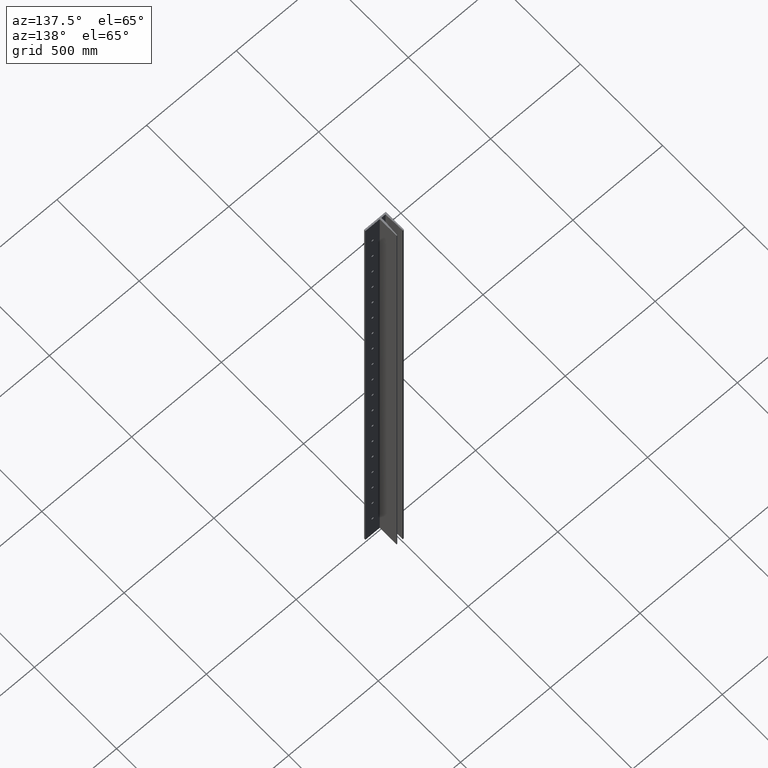
[diagram: clean part render]
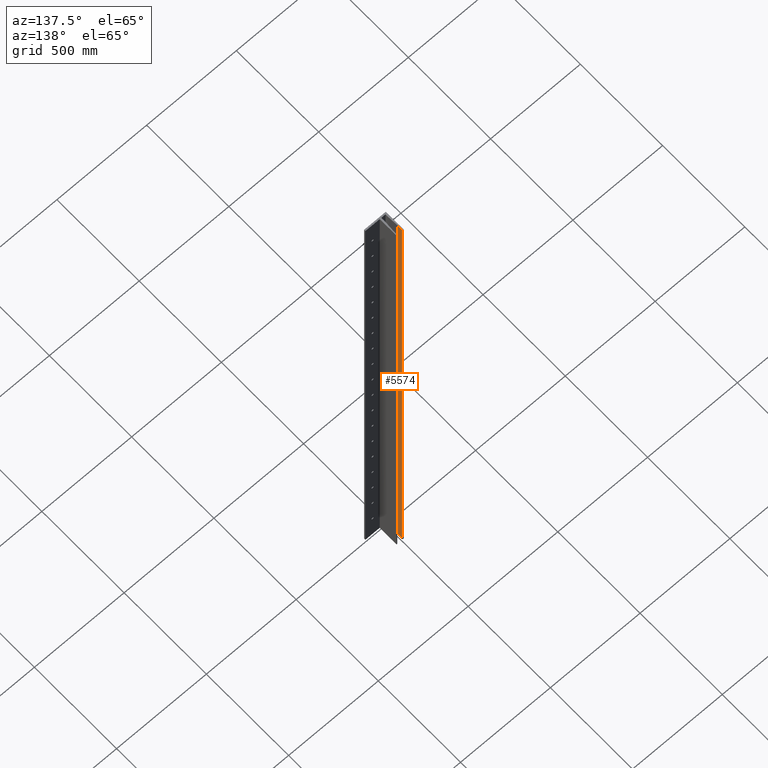
[diagram: same view with one face highlighted and labeled with its STEP entity id]
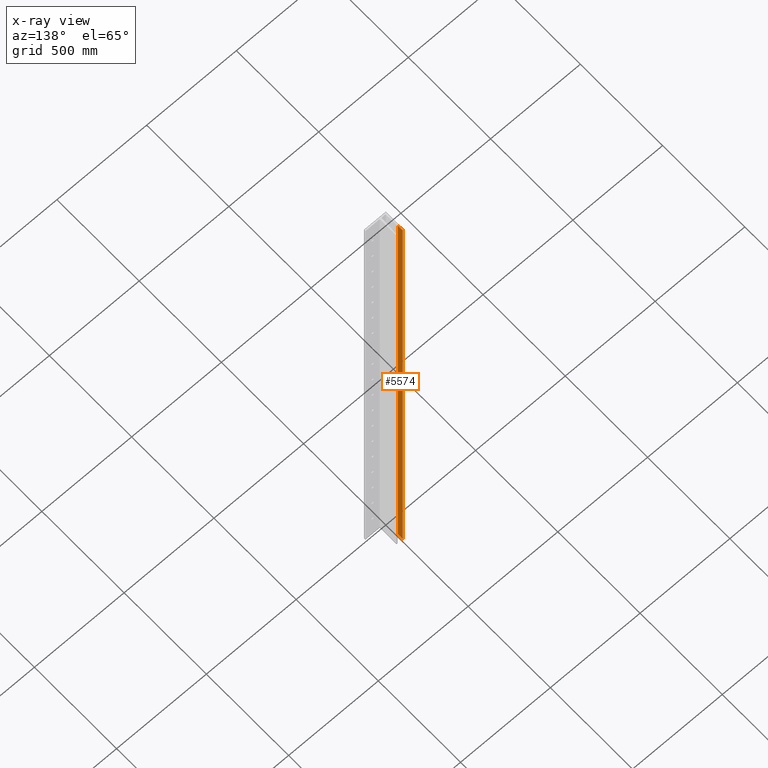
[diagram: x-ray of the same camera — body ghosted, the highlighted face saturated]
A machine part, auxiliary view. The second image highlights one B-rep face of the part: STEP entity #5574.
The next image is the same camera in x-ray: the body ghosted, the highlighted face saturated — about 0% of this face is hidden behind the body in this view.
In plain terms, the highlighted planar face has unit normal (-1, -0, 0).
Its self-contained STEP definition (entity closure, byte-faithful):
#252 = VECTOR ( 'NONE', #1202, 1000.000000000000000 ) ;
#595 = CARTESIAN_POINT ( 'NONE',  ( 6.199999999965304400, 108.8022774425366500, 1500.000000000000000 ) ) ;
#981 = VECTOR ( 'NONE', #4774, 1000.000000000000000 ) ;
#1202 = DIRECTION ( 'NONE',  ( -5.146239971818556900E-016, 1.000000000000000000, 0.0000000000000000000 ) ) ;
#1981 = EDGE_CURVE ( 'NONE', #9761, #5958, #6764, .T. ) ;
#2121 = VERTEX_POINT ( 'NONE', #595 ) ;
#2415 = CARTESIAN_POINT ( 'NONE',  ( 6.199999999965319500, 80.15000000007552200, -1500.000000000000000 ) ) ;
#2517 = VECTOR ( 'NONE', #10091, 1000.000000000000000 ) ;
#2847 = ORIENTED_EDGE ( 'NONE', *, *, #12493, .F. ) ;
#3094 = FACE_OUTER_BOUND ( 'NONE', #16058, .T. ) ;
#3171 = CARTESIAN_POINT ( 'NONE',  ( 6.199999999965304400, 108.8022774425366500, 1500.000000000000000 ) ) ;
#3321 = ORIENTED_EDGE ( 'NONE', *, *, #14847, .T. ) ;
#4774 = DIRECTION ( 'NONE',  ( -0.0000000000000000000, -0.0000000000000000000, -1.000000000000000000 ) ) ;
#5197 = VERTEX_POINT ( 'NONE', #9332 ) ;
#5574 = ADVANCED_FACE ( 'NONE', ( #3094 ), #8235, .F. ) ;
#5621 = VECTOR ( 'NONE', #10798, 1000.000000000000000 ) ;
#5671 = EDGE_CURVE ( 'NONE', #2121, #5958, #10555, .T. ) ;
#5873 = CARTESIAN_POINT ( 'NONE',  ( 6.199999999965319500, 80.15000000007552200, 1500.000000000000000 ) ) ;
#5958 = VERTEX_POINT ( 'NONE', #13744 ) ;
#6275 = CARTESIAN_POINT ( 'NONE',  ( 6.199999999965319500, 80.15000000007552200, 1500.000000000000000 ) ) ;
#6764 = LINE ( 'NONE', #12557, #252 ) ;
#8235 = PLANE ( 'NONE',  #14464 ) ;
#9189 = LINE ( 'NONE', #6275, #2517 ) ;
#9254 = DIRECTION ( 'NONE',  ( 5.146239971818556900E-016, -1.000000000000000000, 0.0000000000000000000 ) ) ;
#9332 = CARTESIAN_POINT ( 'NONE',  ( 6.199999999965319500, 80.15000000007552200, 1500.000000000000000 ) ) ;
#9761 = VERTEX_POINT ( 'NONE', #2415 ) ;
#9819 = ORIENTED_EDGE ( 'NONE', *, *, #1981, .T. ) ;
#10091 = DIRECTION ( 'NONE',  ( -5.146239971818556900E-016, 1.000000000000000000, 0.0000000000000000000 ) ) ;
#10555 = LINE ( 'NONE', #3171, #5621 ) ;
#10643 = CARTESIAN_POINT ( 'NONE',  ( 6.199999999965319500, 80.15000000007552200, 1500.000000000000000 ) ) ;
#10798 = DIRECTION ( 'NONE',  ( -0.0000000000000000000, -0.0000000000000000000, -1.000000000000000000 ) ) ;
#11767 = LINE ( 'NONE', #5873, #981 ) ;
#12493 = EDGE_CURVE ( 'NONE', #5197, #2121, #9189, .T. ) ;
#12557 = CARTESIAN_POINT ( 'NONE',  ( 6.199999999965319500, 80.15000000007552200, -1500.000000000000000 ) ) ;
#13744 = CARTESIAN_POINT ( 'NONE',  ( 6.199999999965304400, 108.8022774425366500, -1500.000000000000000 ) ) ;
#14182 = ORIENTED_EDGE ( 'NONE', *, *, #5671, .F. ) ;
#14464 = AXIS2_PLACEMENT_3D ( 'NONE', #10643, #14501, #9254 ) ;
#14501 = DIRECTION ( 'NONE',  ( -1.000000000000000000, -5.146239971818556900E-016, 0.0000000000000000000 ) ) ;
#14847 = EDGE_CURVE ( 'NONE', #5197, #9761, #11767, .T. ) ;
#16058 = EDGE_LOOP ( 'NONE', ( #9819, #14182, #2847, #3321 ) ) ;